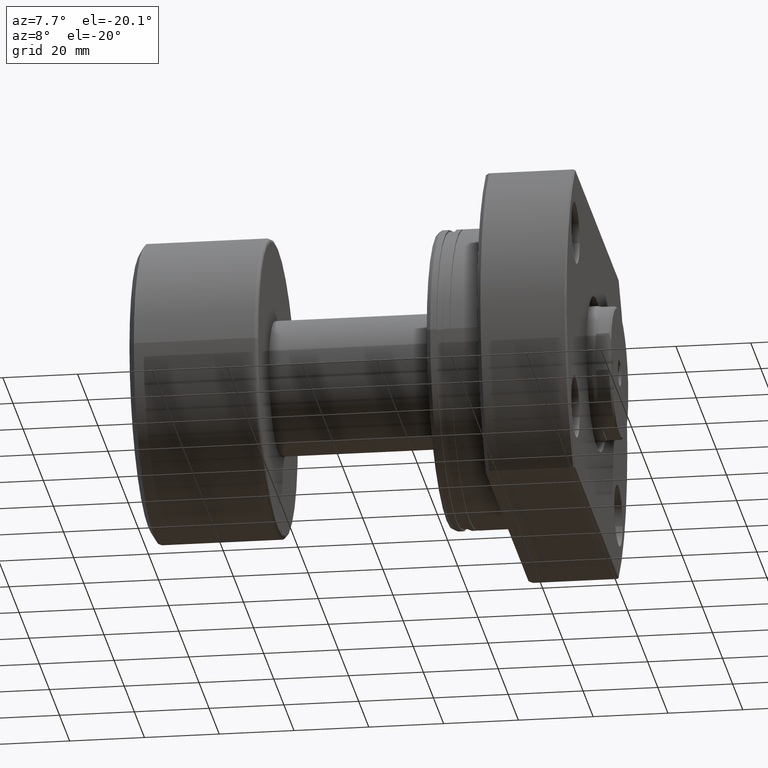
[diagram: clean part render]
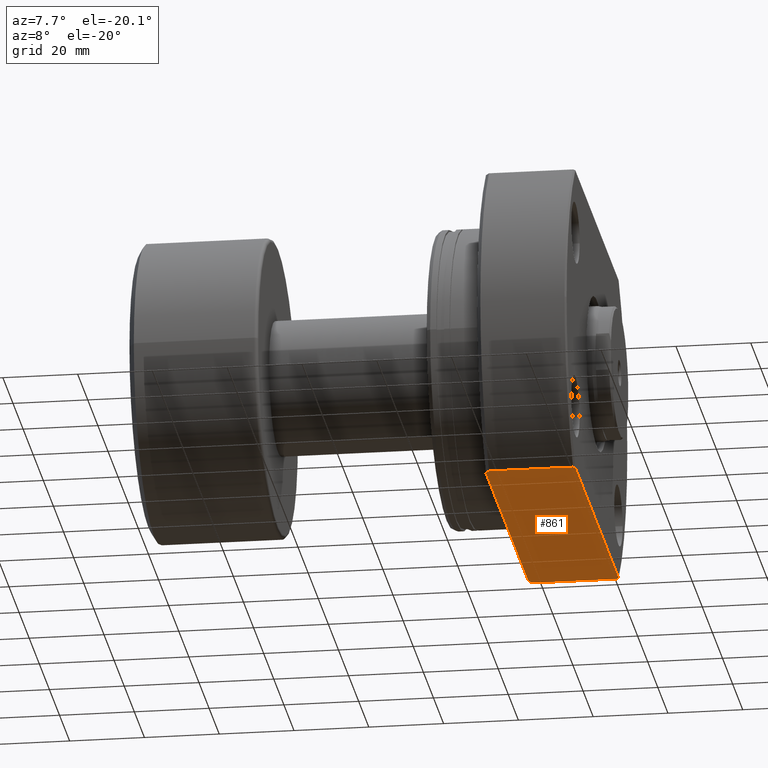
[diagram: same view with one face highlighted and labeled with its STEP entity id]
A machine part, auxiliary view. The second image highlights one B-rep face of the part: STEP entity #861.
In plain terms, the highlighted planar face has unit normal (0, 0, 1).
Its self-contained STEP definition (entity closure, byte-faithful):
#15 = EDGE_CURVE ( 'NONE', #2516, #2377, #2955, .T. ) ;
#76 = LINE ( 'NONE', #3056, #2674 ) ;
#77 = CARTESIAN_POINT ( 'NONE',  ( 16.19999999999999929, 42.14558102577294108, -42.00000000000000711 ) ) ;
#172 = VECTOR ( 'NONE', #400, 1000.000000000000000 ) ;
#269 = CARTESIAN_POINT ( 'NONE',  ( 40.20000000000000284, -42.84857057125708479, -42.00000000000000711 ) ) ;
#323 = ORIENTED_EDGE ( 'NONE', *, *, #1018, .F. ) ;
#325 = CARTESIAN_POINT ( 'NONE',  ( 16.53155433190904589, 42.61366053181948388, -42.00000000000000711 ) ) ;
#390 = DIRECTION ( 'NONE',  ( -4.782824563834189405E-17, 1.000000000000000000, -0.000000000000000000 ) ) ;
#400 = DIRECTION ( 'NONE',  ( 1.000000000000000000, -2.886466111666351885E-14, -0.000000000000000000 ) ) ;
#421 = DIRECTION ( 'NONE',  ( 1.000000000000000000, 0.000000000000000000, -0.000000000000000000 ) ) ;
#452 = VERTEX_POINT ( 'NONE', #3194 ) ;
#576 = VECTOR ( 'NONE', #970, 1000.000000000000000 ) ;
#762 = CARTESIAN_POINT ( 'NONE',  ( 39.86709459080173445, -43.31380205492687452, -42.00000000000000711 ) ) ;
#841 = CARTESIAN_POINT ( 'NONE',  ( 39.70000000000009521, -43.54595273960589452, -41.99999999999999289 ) ) ;
#861 = ADVANCED_FACE ( 'NONE', ( #1476 ), #2459, .F. ) ;
#865 = B_SPLINE_CURVE_WITH_KNOTS ( 'NONE', 3,
 ( #1295, #762, #2539, #269 ),
 .UNSPECIFIED., .F., .F.,
 ( 4, 4 ),
 ( 0.06842734416309759204, 0.06928669907482787327 ),
 .UNSPECIFIED. ) ;
#903 = EDGE_LOOP ( 'NONE', ( #2052, #1593, #1912, #323, #1788, #2390, #2661, #1487 ) ) ;
#932 = LINE ( 'NONE', #1669, #172 ) ;
#964 = VERTEX_POINT ( 'NONE', #2929 ) ;
#970 = DIRECTION ( 'NONE',  ( 4.782824563834189405E-17, -1.000000000000000000, 0.000000000000000000 ) ) ;
#1018 = EDGE_CURVE ( 'NONE', #1293, #2799, #865, .T. ) ;
#1026 = VERTEX_POINT ( 'NONE', #2802 ) ;
#1039 = CARTESIAN_POINT ( 'NONE',  ( 17.19999999999998153, 43.54595273960649848, -42.00000000000002842 ) ) ;
#1254 = EDGE_CURVE ( 'NONE', #2799, #1026, #76, .T. ) ;
#1284 = CARTESIAN_POINT ( 'NONE',  ( 16.20000000000000639, -42.14558102577294108, -42.00000000000000711 ) ) ;
#1293 = VERTEX_POINT ( 'NONE', #841 ) ;
#1295 = CARTESIAN_POINT ( 'NONE',  ( 39.70000000000009521, -43.54595273960589452, -41.99999999999999289 ) ) ;
#1398 = EDGE_CURVE ( 'NONE', #964, #452, #3202, .T. ) ;
#1426 = CARTESIAN_POINT ( 'NONE',  ( -4.857225732735059864E-13, 43.54595273960700297, -42.00000000000002842 ) ) ;
#1476 = FACE_OUTER_BOUND ( 'NONE', #903, .T. ) ;
#1487 = ORIENTED_EDGE ( 'NONE', *, *, #1987, .F. ) ;
#1506 = CARTESIAN_POINT ( 'NONE',  ( 16.53144698496875975, -42.61350898229062523, -42.00000000000000711 ) ) ;
#1561 = CARTESIAN_POINT ( 'NONE',  ( 16.86482042041076923, -43.08027537375727434, -42.00000000000000711 ) ) ;
#1593 = ORIENTED_EDGE ( 'NONE', *, *, #3125, .F. ) ;
#1626 = CARTESIAN_POINT ( 'NONE',  ( 40.20000000000000284, 42.84857057125709190, -42.00000000000000711 ) ) ;
#1648 = EDGE_CURVE ( 'NONE', #2700, #1293, #932, .T. ) ;
#1662 = CARTESIAN_POINT ( 'NONE',  ( 40.03379223298939849, 43.08130799721279658, -42.00000000000000711 ) ) ;
#1669 = CARTESIAN_POINT ( 'NONE',  ( -2.997602166487922659E-12, -43.54595273960475055, -41.99999999999999289 ) ) ;
#1695 = DIRECTION ( 'NONE',  ( 1.000000000000000000, -2.886466111666351885E-14, -0.000000000000000000 ) ) ;
#1788 = ORIENTED_EDGE ( 'NONE', *, *, #1648, .F. ) ;
#1867 = B_SPLINE_CURVE_WITH_KNOTS ( 'NONE', 3,
 ( #1039, #3026, #325, #2015 ),
 .UNSPECIFIED., .F., .F.,
 ( 4, 4 ),
 ( 0.06843084807226249011, 0.07015410504178025419 ),
 .UNSPECIFIED. ) ;
#1900 = B_SPLINE_CURVE_WITH_KNOTS ( 'NONE', 3,
 ( #1626, #1662, #2865, #2656 ),
 .UNSPECIFIED., .F., .F.,
 ( 4, 4 ),
 ( 0.1639571914734298530, 0.1648217309186877089 ),
 .UNSPECIFIED. ) ;
#1912 = ORIENTED_EDGE ( 'NONE', *, *, #1254, .F. ) ;
#1951 = VECTOR ( 'NONE', #1695, 1000.000000000000000 ) ;
#1987 = EDGE_CURVE ( 'NONE', #964, #2516, #1867, .T. ) ;
#2015 = CARTESIAN_POINT ( 'NONE',  ( 16.19999999999999929, 42.14558102577294108, -42.00000000000000711 ) ) ;
#2052 = ORIENTED_EDGE ( 'NONE', *, *, #1398, .T. ) ;
#2239 = CARTESIAN_POINT ( 'NONE',  ( 16.20000000000000639, -39.99999999999999289, -42.00000000000000711 ) ) ;
#2295 = CARTESIAN_POINT ( 'NONE',  ( 17.19999999999998153, -43.54595273960524793, -41.99999999999999289 ) ) ;
#2377 = VERTEX_POINT ( 'NONE', #3172 ) ;
#2390 = ORIENTED_EDGE ( 'NONE', *, *, #2841, .F. ) ;
#2459 = PLANE ( 'NONE',  #2616 ) ;
#2478 = DIRECTION ( 'NONE',  ( 0.000000000000000000, 0.000000000000000000, 1.000000000000000000 ) ) ;
#2481 = CARTESIAN_POINT ( 'NONE',  ( 17.19999999999998153, -43.54595273960524793, -41.99999999999999289 ) ) ;
#2516 = VERTEX_POINT ( 'NONE', #77 ) ;
#2539 = CARTESIAN_POINT ( 'NONE',  ( 40.03376598237900197, -43.08134475541973529, -42.00000000000000711 ) ) ;
#2616 = AXIS2_PLACEMENT_3D ( 'NONE', #2657, #2478, #421 ) ;
#2656 = CARTESIAN_POINT ( 'NONE',  ( 39.70000000000009521, 43.54595273960585189, -42.00000000000002842 ) ) ;
#2657 = CARTESIAN_POINT ( 'NONE',  ( -4.857225732735059864E-13, 43.54595273960703850, -42.00000000000000711 ) ) ;
#2661 = ORIENTED_EDGE ( 'NONE', *, *, #15, .F. ) ;
#2674 = VECTOR ( 'NONE', #390, 1000.000000000000000 ) ;
#2681 = B_SPLINE_CURVE_WITH_KNOTS ( 'NONE', 3,
 ( #1284, #1506, #1561, #2295 ),
 .UNSPECIFIED., .F., .F.,
 ( 4, 4 ),
 ( 0.1630913217281462491, 0.1648252527028309933 ),
 .UNSPECIFIED. ) ;
#2693 = CARTESIAN_POINT ( 'NONE',  ( 40.20000000000000284, -42.84857057125708479, -42.00000000000000711 ) ) ;
#2700 = VERTEX_POINT ( 'NONE', #2481 ) ;
#2799 = VERTEX_POINT ( 'NONE', #2693 ) ;
#2802 = CARTESIAN_POINT ( 'NONE',  ( 40.20000000000000284, 42.84857057125709190, -42.00000000000000711 ) ) ;
#2841 = EDGE_CURVE ( 'NONE', #2377, #2700, #2681, .T. ) ;
#2865 = CARTESIAN_POINT ( 'NONE',  ( 39.86712069734446828, 43.31376578414313627, -42.00000000000000711 ) ) ;
#2929 = CARTESIAN_POINT ( 'NONE',  ( 17.19999999999998153, 43.54595273960649848, -42.00000000000002842 ) ) ;
#2955 = LINE ( 'NONE', #2239, #576 ) ;
#3026 = CARTESIAN_POINT ( 'NONE',  ( 16.86492660039200686, 43.08042289352572851, -42.00000000000000711 ) ) ;
#3056 = CARTESIAN_POINT ( 'NONE',  ( 40.20000000000000284, -60.00000000000000000, -42.00000000000000711 ) ) ;
#3125 = EDGE_CURVE ( 'NONE', #1026, #452, #1900, .T. ) ;
#3172 = CARTESIAN_POINT ( 'NONE',  ( 16.20000000000000639, -42.14558102577294108, -42.00000000000000711 ) ) ;
#3194 = CARTESIAN_POINT ( 'NONE',  ( 39.70000000000009521, 43.54595273960585189, -42.00000000000002842 ) ) ;
#3202 = LINE ( 'NONE', #1426, #1951 ) ;